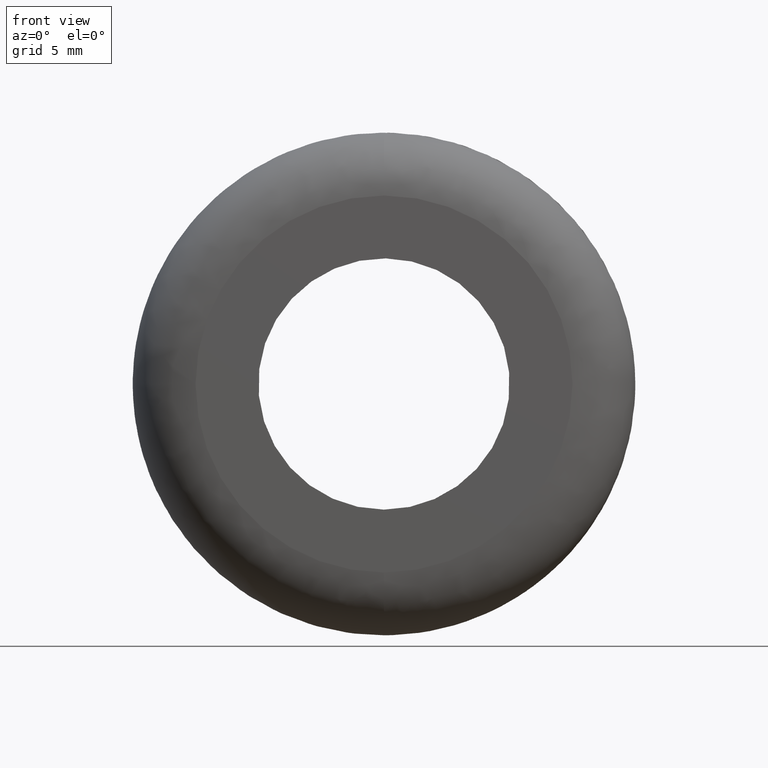
[diagram: clean part render]
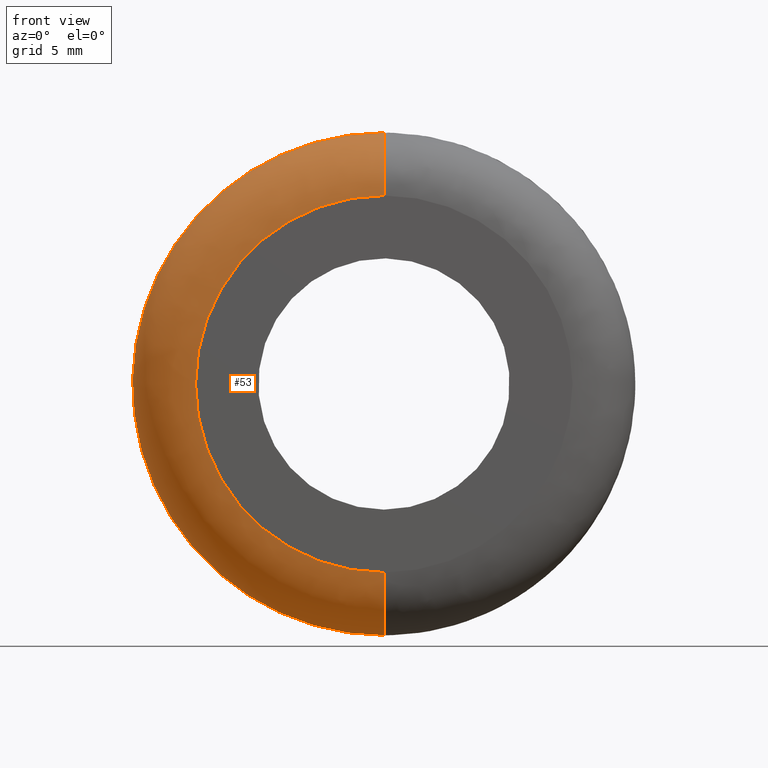
[diagram: same view with one face highlighted and labeled with its STEP entity id]
A machine part, front view. The second image highlights one B-rep face of the part: STEP entity #53.
In plain terms, the highlighted face is a freeform B-spline surface patch.
Its self-contained STEP definition (entity closure, byte-faithful):
#53=ADVANCED_FACE('',(#191),#190,.T.);
#190=( BOUNDED_SURFACE() B_SPLINE_SURFACE( 2,2,((#310,#311,#312,#313,#314),(#315,#316,#317,#318,#319),(#320,#321,#322,#323,#324),(#325,#326,#327,#328,#329),(#330,#331,#332,#333,#334)), .UNSPECIFIED.,.F.,.F.,.F.) B_SPLINE_SURFACE_WITH_KNOTS((3,2,3),(3,2,3),(0.00000000000E+000,5.00000000000E-001,1.00000000000E+000),(0.00000000000E+000,5.00000000000E-001,1.00000000000E+000), .UNSPECIFIED. ) GEOMETRIC_REPRESENTATION_ITEM() RATIONAL_B_SPLINE_SURFACE(((1.00000000000E+000,7.07106781087E-001,1.00000000000E+000,7.07106781087E-001,1.00000000000E+000),(7.07106781187E-001,4.99999999930E-001,7.07106781187E-001,4.99999999930E-001,7.07106781187E-001),(1.00000000000E+000,7.07106781087E-001,1.00000000000E+000,7.07106781087E-001,1.00000000000E+000),(7.07106781187E-001,4.99999999930E-001,7.07106781187E-001,4.99999999930E-001,7.07106781187E-001),(1.00000000000E+000,7.07106781087E-001,1.00000000000E+000,7.07106781087E-001,1.00000000000E+000))) REPRESENTATION_ITEM('') SURFACE() );
#191=FACE_OUTER_BOUND('',#335,.T.);
#310=CARTESIAN_POINT('',(1.95949959116E-015,4.00000000000E+000,1.60000000000E+001));
#311=CARTESIAN_POINT('',(1.95949959116E-015,-1.12293138268E-009,1.60000000000E+001));
#312=CARTESIAN_POINT('',(1.46962469323E-015,4.44089209850E-015,1.19999999989E+001));
#313=CARTESIAN_POINT('',(9.79749795303E-016,1.12293954716E-009,7.99999999775E+000));
#314=CARTESIAN_POINT('',(9.79749795578E-016,4.00000000225E+000,8.00000000000E+000));
#315=CARTESIAN_POINT('',(-1.60000000000E+001,4.00000000000E+000,1.60000000000E+001));
#316=CARTESIAN_POINT('',(-1.60000000000E+001,-1.12293138268E-009,1.60000000000E+001));
#317=CARTESIAN_POINT('',(-1.19999999989E+001,4.44089209850E-015,1.19999999989E+001));
#318=CARTESIAN_POINT('',(-7.99999999775E+000,1.12293954716E-009,7.99999999775E+000));
#319=CARTESIAN_POINT('',(-8.00000000000E+000,4.00000000225E+000,8.00000000000E+000));
#320=CARTESIAN_POINT('',(-1.60000000000E+001,4.00000000000E+000,-1.35406559913E-014));
#321=CARTESIAN_POINT('',(-1.60000000000E+001,-1.12293138268E-009,-1.35406559913E-014));
#322=CARTESIAN_POINT('',(-1.19999999989E+001,4.44089209850E-015,-1.42754602491E-014));
#323=CARTESIAN_POINT('',(-7.99999999775E+000,1.12293954716E-009,-1.50102645070E-014));
#324=CARTESIAN_POINT('',(-8.00000000000E+000,4.00000000225E+000,-1.50102645065E-014));
#325=CARTESIAN_POINT('',(-1.60000000000E+001,4.00000000000E+000,-1.60000000000E+001));
#326=CARTESIAN_POINT('',(-1.60000000000E+001,-1.12293138268E-009,-1.60000000000E+001));
#327=CARTESIAN_POINT('',(-1.19999999989E+001,4.44089209850E-015,-1.19999999989E+001));
#328=CARTESIAN_POINT('',(-7.99999999775E+000,1.12293954716E-009,-7.99999999775E+000));
#329=CARTESIAN_POINT('',(-8.00000000000E+000,4.00000000225E+000,-8.00000000000E+000));
#330=CARTESIAN_POINT('',(-3.91893446979E-015,4.00000000000E+000,-1.60000000000E+001));
#331=CARTESIAN_POINT('',(-3.91893446979E-015,-1.12293138268E-009,-1.60000000000E+001));
#332=CARTESIAN_POINT('',(-2.93920085207E-015,4.44089209850E-015,-1.19999999989E+001));
#333=CARTESIAN_POINT('',(-1.95946723435E-015,1.12293954716E-009,-7.99999999775E+000));
#334=CARTESIAN_POINT('',(-1.95946723490E-015,4.00000000225E+000,-8.00000000000E+000));
#335=EDGE_LOOP('',(#464,#465,#466,#467,#468,#469));
#464=ORIENTED_EDGE('',*,*,#513,.T.);
#465=ORIENTED_EDGE('',*,*,#512,.T.);
#466=ORIENTED_EDGE('',*,*,#510,.T.);
#467=ORIENTED_EDGE('',*,*,#528,.T.);
#468=ORIENTED_EDGE('',*,*,#502,.F.);
#469=ORIENTED_EDGE('',*,*,#529,.F.);
#502=EDGE_CURVE('',#658,#659,#660,.T.);
#510=EDGE_CURVE('',#714,#707,#715,.T.);
#512=EDGE_CURVE('',#727,#714,#728,.T.);
#513=EDGE_CURVE('',#734,#727,#735,.T.);
#528=EDGE_CURVE('',#707,#659,#832,.T.);
#529=EDGE_CURVE('',#734,#658,#838,.T.);
#658=VERTEX_POINT('',#946);
#659=VERTEX_POINT('',#947);
#660=CIRCLE('',#951,1.20000000002E+001);
#707=VERTEX_POINT('',#979);
#714=VERTEX_POINT('',#984);
#715=CIRCLE('',#988,1.60000000000E+001);
#727=VERTEX_POINT('',#991);
#728=CIRCLE('',#995,1.59999993462E+001);
#734=VERTEX_POINT('',#996);
#735=CIRCLE('',#1000,1.60000011083E+001);
#832=(BOUNDED_CURVE() B_SPLINE_CURVE(2,(#1052,#1053,#1054),.UNSPECIFIED.,.F.,.F.) B_SPLINE_CURVE_WITH_KNOTS((3,3),(0.00000000000E+000,5.00000000000E-001),.UNSPECIFIED.) CURVE() GEOMETRIC_REPRESENTATION_ITEM() RATIONAL_B_SPLINE_CURVE((1.00000000000E+000,7.07106781087E-001,1.00000000000E+000)) REPRESENTATION_ITEM('') );
#838=(BOUNDED_CURVE() B_SPLINE_CURVE(3,(#1055,#1056,#1057,#1058,#1059),.UNSPECIFIED.,.F.,.F.) B_SPLINE_CURVE_WITH_KNOTS((4,1,4),(0.00000000000E+000,2.50000006959E-001,5.00000012093E-001),.UNSPECIFIED.) CURVE() GEOMETRIC_REPRESENTATION_ITEM() RATIONAL_B_SPLINE_CURVE((1.00000000000E+000,1.00000000000E+000,1.00000000000E+000,1.00000000000E+000,1.00000000000E+000)) REPRESENTATION_ITEM('') );
#946=CARTESIAN_POINT('',(1.46952947067E-015,1.46715599004E-015,1.20000000005E+001));
#947=CARTESIAN_POINT('',(4.73695157173E-015,-2.22044600000E-015,-1.20000000000E+001));
#948=CARTESIAN_POINT('',(-4.75592898397E-011,-3.76645004978E-016,2.32894592500E-010));
#949=DIRECTION('',(-2.05449595387E-032,-1.00000000000E+000,1.53650082916E-016));
#950=DIRECTION('',(3.96283006417E-012,1.53650082916E-016,1.00000000000E+000));
#951=AXIS2_PLACEMENT_3D('',#948,#949,#950);
#979=CARTESIAN_POINT('',(0.00000000000E+000,4.00000000000E+000,-1.60000000000E+001));
#984=CARTESIAN_POINT('',(-1.04694339899E+001,4.00000000000E+000,-1.20992128641E+001));
#985=CARTESIAN_POINT('',(-2.09254835681E-012,3.99999999997E+000,2.13873363464E-012));
#986=DIRECTION('',(-1.37753244237E-040,-1.00000000000E+000,-1.84796622449E-012));
#987=DIRECTION('',(-1.30784272301E-013,-1.84796622449E-012,1.00000000000E+000));
#988=AXIS2_PLACEMENT_3D('',#985,#986,#987);
#991=CARTESIAN_POINT('',(-1.59949470285E+001,3.99999999997E+000,4.02081527098E-001));
#992=CARTESIAN_POINT('',(-6.61346026831E-007,3.99999999984E+000,-2.92311801431E-007));
#993=DIRECTION('',(-1.15876864877E-011,-1.00000000000E+000,-1.43106282104E-010));
#994=DIRECTION('',(9.99684188798E-001,-7.98774967724E-012,-2.51301147400E-002));
#995=AXIS2_PLACEMENT_3D('',#992,#993,#994);
#996=CARTESIAN_POINT('',(0.00000000000E+000,4.00000000000E+000,1.60000000000E+001));
#997=CARTESIAN_POINT('',(4.31013543967E-007,3.99999999997E+000,-1.10834793432E-006));
#998=DIRECTION('',(-5.74002758307E-028,-1.00000000000E+000,1.82792657227E-012));
#999=DIRECTION('',(2.69383446319E-008,-1.82792657227E-012,-1.00000000000E+000));
#1000=AXIS2_PLACEMENT_3D('',#997,#998,#999);
#1052=CARTESIAN_POINT('',(-6.47125199615E-020,4.00000000000E+000,-1.60000000000E+001));
#1053=CARTESIAN_POINT('',(-6.47125199615E-020,-1.12293138268E-009,-1.60000000000E+001));
#1054=CARTESIAN_POINT('',(-4.85343899666E-020,4.44089209850E-015,-1.19999999989E+001));
#1055=CARTESIAN_POINT('',(-5.92118946467E-016,4.00000000000E+000,1.60000000000E+001));
#1056=CARTESIAN_POINT('',(-4.38193719709E-016,2.96755046085E+000,1.60073768715E+001));
#1057=CARTESIAN_POINT('',(-2.55516751683E-016,8.63058870170E-001,1.51369410138E+001));
#1058=CARTESIAN_POINT('',(-4.38193770214E-016,-7.37690673718E-003,1.30324493934E+001));
#1059=CARTESIAN_POINT('',(-5.92118926213E-016,6.81930944147E-015,1.19999998621E+001));